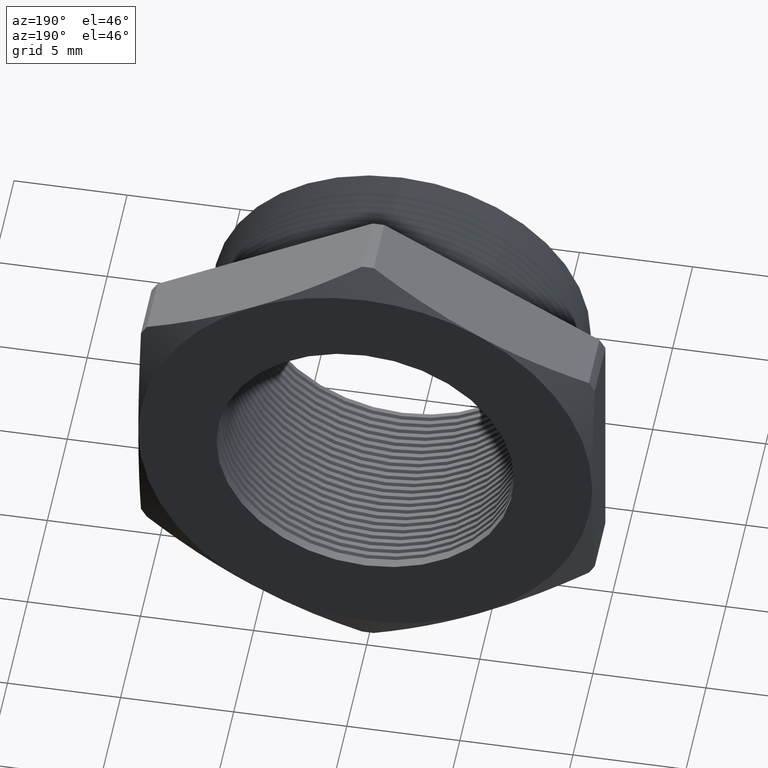
[diagram: clean part render]
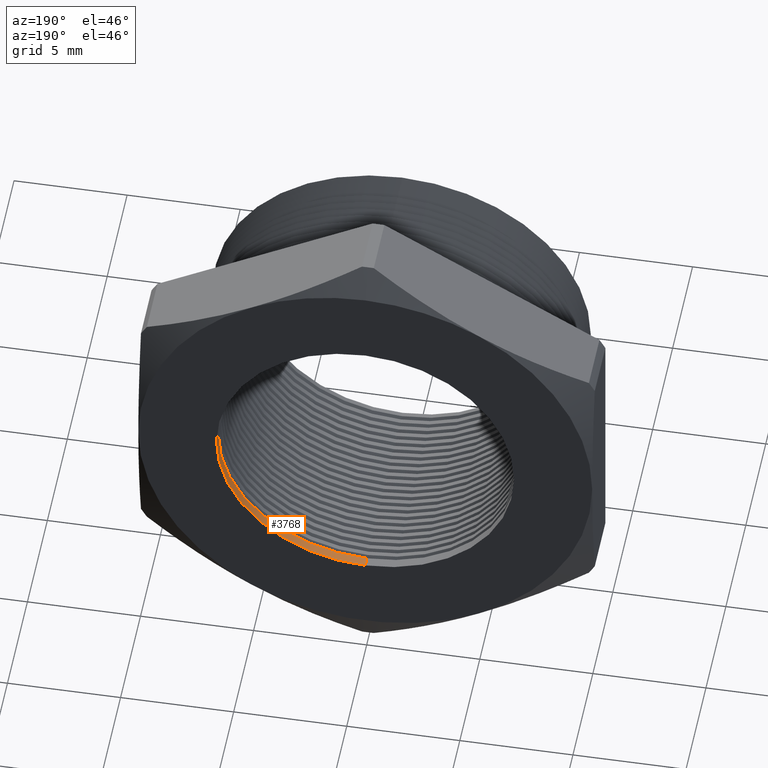
[diagram: same view with one face highlighted and labeled with its STEP entity id]
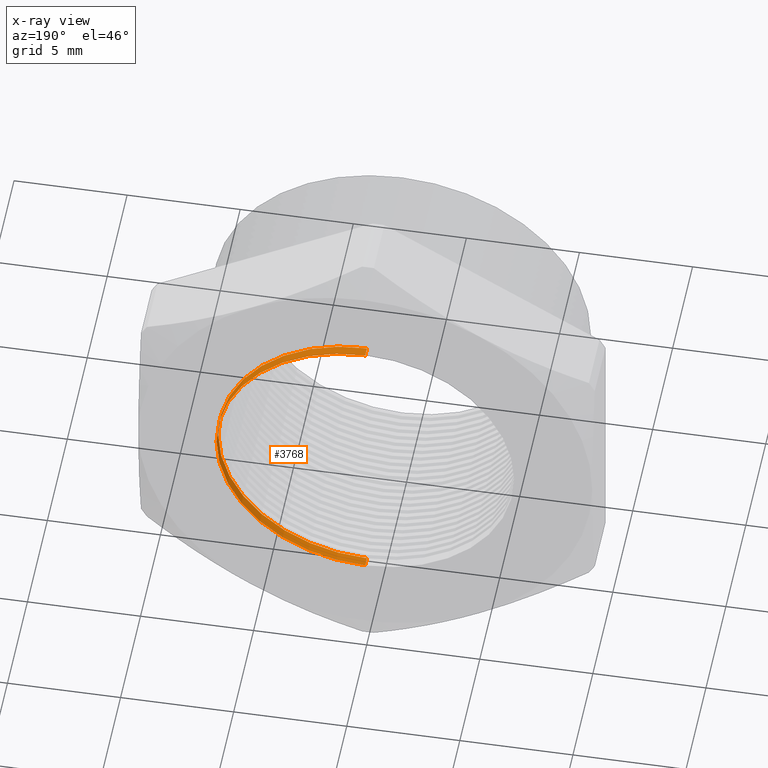
[diagram: x-ray of the same camera — body ghosted, the highlighted face saturated]
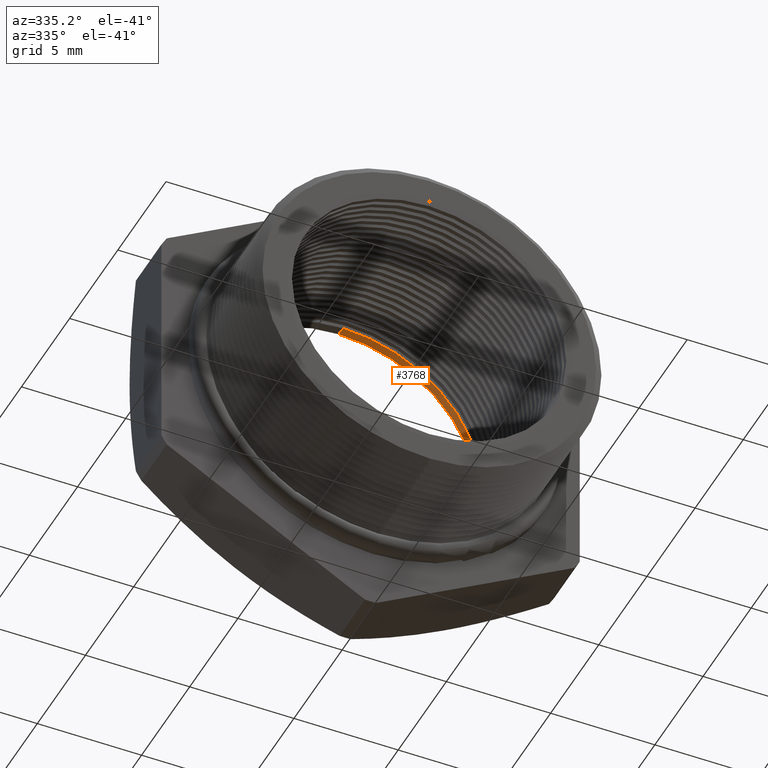
[diagram: same view with one face highlighted and labeled with its STEP entity id]
A machine part, auxiliary view. The second image highlights one B-rep face of the part: STEP entity #3768.
The next image is the same camera in x-ray: the body ghosted, the highlighted face saturated — about 0% of this face is hidden behind the body in this view.
A second angle (auxiliary view) of the same face is appended — the face is thin or edge-on in the first view.
In plain terms, the highlighted cylindrical surface (partial cylindrical patch) has radius 6.5783 mm, axis along (-0, -1, -0).
Its self-contained STEP definition (entity closure, byte-faithful):
#1472 = DIRECTION ( 'NONE',  ( 0.0000000000000000000, 0.0000000000000000000, -1.000000000000000000 ) ) ;
#1473 = DIRECTION ( 'NONE',  ( -0.0000000000000000000, -1.000000000000000000, -0.0000000000000000000 ) ) ;
#1474 = CARTESIAN_POINT ( 'NONE',  ( 0.0000000000000000000, 0.4075548905829479200, 0.0000000000000000000 ) ) ;
#1475 = AXIS2_PLACEMENT_3D ( 'NONE', #1474, #1473, #1472 ) ;
#1476 = CIRCLE ( 'NONE', #1475, 0.2589880461203001900 ) ;
#2968 = CARTESIAN_POINT ( 'NONE',  ( 0.0000000000000000000, 0.3903219653570460000, -0.2589880461203001900 ) ) ;
#3053 = LINE ( 'NONE', #3113, #3112 ) ;
#3059 = CARTESIAN_POINT ( 'NONE',  ( 0.0000000000000000000, 0.4075548905829479200, -0.2589880461203001900 ) ) ;
#3060 = CARTESIAN_POINT ( 'NONE',  ( 3.171688816986526800E-017, 0.4075548905829479200, 0.2589880461203001900 ) ) ;
#3105 = CARTESIAN_POINT ( 'NONE',  ( 3.171688816986526800E-017, 0.3903219653570460000, 0.2589880461203001900 ) ) ;
#3107 = DIRECTION ( 'NONE',  ( -0.0000000000000000000, -1.000000000000000000, -0.0000000000000000000 ) ) ;
#3108 = VECTOR ( 'NONE', #3107, 39.37007874015748100 ) ;
#3109 = CARTESIAN_POINT ( 'NONE',  ( 0.0000000000000000000, 0.0000000000000000000, -0.2589880461203001900 ) ) ;
#3110 = LINE ( 'NONE', #3109, #3108 ) ;
#3111 = DIRECTION ( 'NONE',  ( -0.0000000000000000000, -1.000000000000000000, -0.0000000000000000000 ) ) ;
#3112 = VECTOR ( 'NONE', #3111, 39.37007874015748100 ) ;
#3113 = CARTESIAN_POINT ( 'NONE',  ( 3.171688816986526800E-017, 0.0000000000000000000, 0.2589880461203001900 ) ) ;
#3768 = ADVANCED_FACE ( 'NONE', ( #5769 ), #5768, .F. ) ;
#3769 = ORIENTED_EDGE ( 'NONE', *, *, #6142, .F. ) ;
#3770 = ORIENTED_EDGE ( 'NONE', *, *, #4694, .F. ) ;
#3771 = ORIENTED_EDGE ( 'NONE', *, *, #6145, .T. ) ;
#3772 = ORIENTED_EDGE ( 'NONE', *, *, #3773, .F. ) ;
#3773 = EDGE_CURVE ( 'NONE', #6149, #6091, #5826, .T. ) ;
#3822 = EDGE_LOOP ( 'NONE', ( #3769, #3770, #3771, #3772 ) ) ;
#4694 = EDGE_CURVE ( 'NONE', #6139, #6138, #1476, .T. ) ;
#5763 = CARTESIAN_POINT ( 'NONE',  ( 0.0000000000000000000, 0.3903219653570460000, 0.0000000000000000000 ) ) ;
#5764 = DIRECTION ( 'NONE',  ( 0.0000000000000000000, 0.0000000000000000000, -1.000000000000000000 ) ) ;
#5765 = DIRECTION ( 'NONE',  ( -0.0000000000000000000, -1.000000000000000000, -0.0000000000000000000 ) ) ;
#5766 = CARTESIAN_POINT ( 'NONE',  ( 0.0000000000000000000, 0.0000000000000000000, 0.0000000000000000000 ) ) ;
#5767 = AXIS2_PLACEMENT_3D ( 'NONE', #5766, #5765, #5764 ) ;
#5768 = CYLINDRICAL_SURFACE ( 'NONE', #5767, 0.2589880461203001900 ) ;
#5769 = FACE_OUTER_BOUND ( 'NONE', #3822, .T. ) ;
#5823 = DIRECTION ( 'NONE',  ( 0.0000000000000000000, 0.0000000000000000000, -1.000000000000000000 ) ) ;
#5824 = DIRECTION ( 'NONE',  ( -0.0000000000000000000, 1.000000000000000000, -0.0000000000000000000 ) ) ;
#5825 = AXIS2_PLACEMENT_3D ( 'NONE', #5763, #5824, #5823 ) ;
#5826 = CIRCLE ( 'NONE', #5825, 0.2589880461203001900 ) ;
#6091 = VERTEX_POINT ( 'NONE', #2968 ) ;
#6138 = VERTEX_POINT ( 'NONE', #3060 ) ;
#6139 = VERTEX_POINT ( 'NONE', #3059 ) ;
#6142 = EDGE_CURVE ( 'NONE', #6138, #6149, #3053, .T. ) ;
#6145 = EDGE_CURVE ( 'NONE', #6139, #6091, #3110, .T. ) ;
#6149 = VERTEX_POINT ( 'NONE', #3105 ) ;